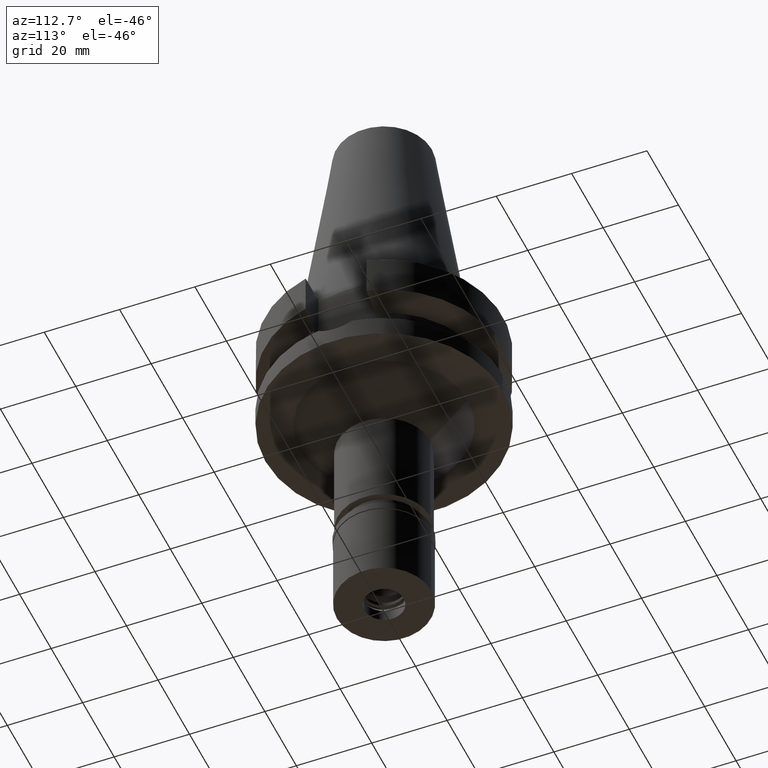
[diagram: clean part render]
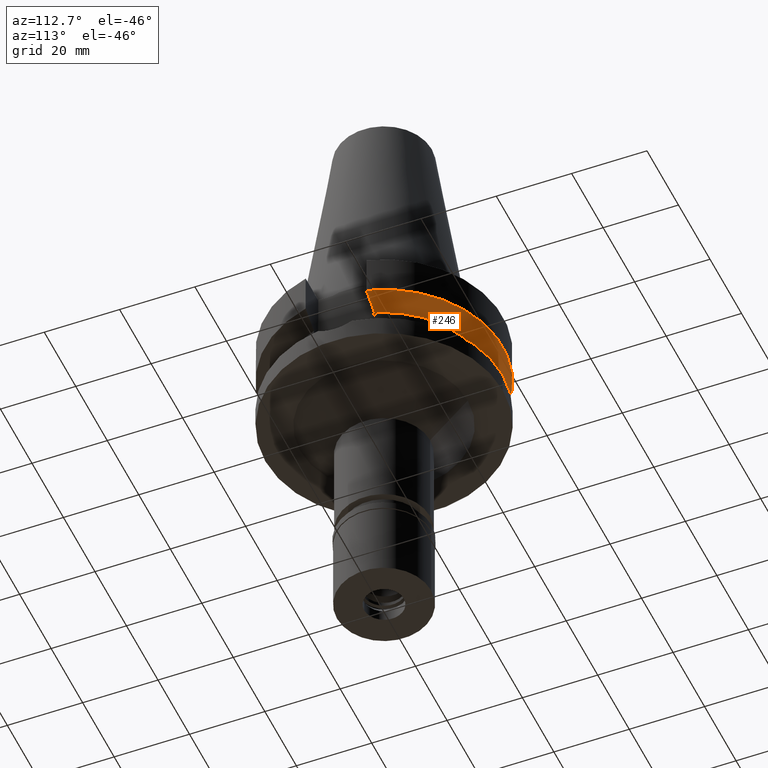
[diagram: same view with one face highlighted and labeled with its STEP entity id]
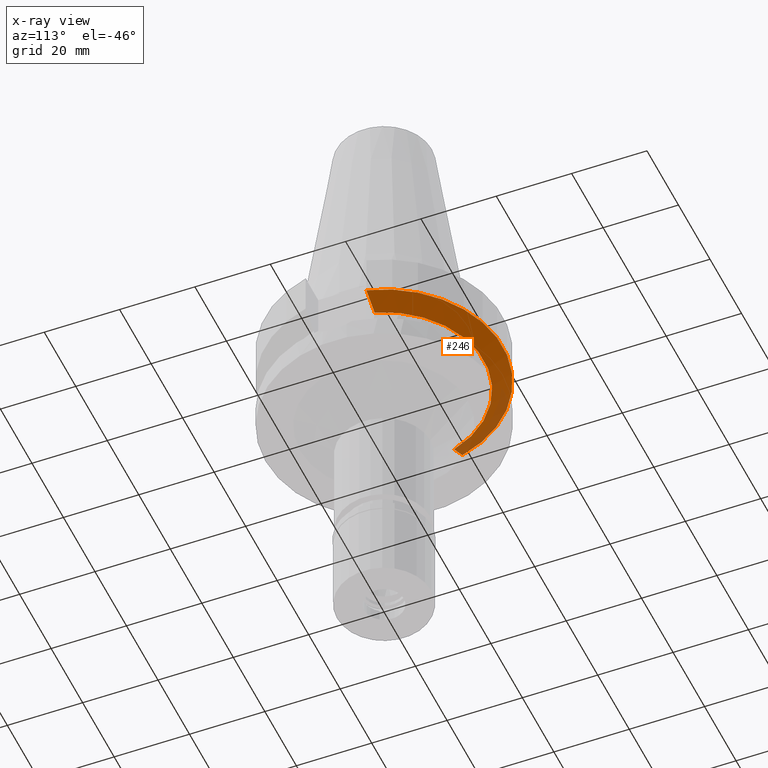
[diagram: x-ray of the same camera — body ghosted, the highlighted face saturated]
A machine part, auxiliary view. The second image highlights one B-rep face of the part: STEP entity #246.
The next image is the same camera in x-ray: the body ghosted, the highlighted face saturated — about 14% of this face is hidden behind the body in this view.
In plain terms, the highlighted conical surface has half-angle 60 deg.
Its self-contained STEP definition (entity closure, byte-faithful):
#75 = CARTESIAN_POINT ( 'NONE',  ( -26.83758139766586837, 8.050003169955372684, -13.57772740039767534 ) ) ;
#189 = VERTEX_POINT ( 'NONE', #716 ) ;
#226 = VERTEX_POINT ( 'NONE', #3113 ) ;
#241 = EDGE_CURVE ( 'NONE', #189, #566, #1414, .T. ) ;
#246 = ADVANCED_FACE ( 'NONE', ( #2449 ), #2520, .T. ) ;
#414 = ORIENTED_EDGE ( 'NONE', *, *, #241, .F. ) ;
#435 = DIRECTION ( 'NONE',  ( -0.9527442516822307583, 0.3037735849057093818, 0.0000000000000000000 ) ) ;
#479 = EDGE_LOOP ( 'NONE', ( #414, #1273, #1669, #1915 ) ) ;
#566 = VERTEX_POINT ( 'NONE', #2785 ) ;
#620 = CIRCLE ( 'NONE', #2230, 26.50000000000000711 ) ;
#646 = AXIS2_PLACEMENT_3D ( 'NONE', #1286, #1240, #1492 ) ;
#716 = CARTESIAN_POINT ( 'NONE',  ( 30.45402291411999940, 8.049999276161001305, -11.56551217212999916 ) ) ;
#780 = CARTESIAN_POINT ( 'NONE',  ( 28.57292324892950219, 8.049998553265025336, -12.61549607903367409 ) ) ;
#967 = EDGE_CURVE ( 'NONE', #189, #226, #1778, .T. ) ;
#983 = DIRECTION ( 'NONE',  ( 0.0000000000000000000, 1.000000000000000000, 0.0000000000000000000 ) ) ;
#1004 = CARTESIAN_POINT ( 'NONE',  ( 26.83754611702247317, 8.049990813108566456, -13.57774890615205088 ) ) ;
#1037 = CARTESIAN_POINT ( 'NONE',  ( -30.45402162675000213, 8.050004146431000152, -11.56546830337999943 ) ) ;
#1240 = DIRECTION ( 'NONE',  ( 0.0000000000000000000, 0.0000000000000000000, 1.000000000000000000 ) ) ;
#1273 = ORIENTED_EDGE ( 'NONE', *, *, #967, .T. ) ;
#1286 = CARTESIAN_POINT ( 'NONE',  ( 0.0000000000000000000, 0.0000000000000000000, -11.56550565266999975 ) ) ;
#1413 = EDGE_CURVE ( 'NONE', #1788, #566, #1651, .T. ) ;
#1414 = CIRCLE ( 'NONE', #646, 31.50000000000000000 ) ;
#1492 = DIRECTION ( 'NONE',  ( 0.0000000000000000000, 1.000000000000000000, 0.0000000000000000000 ) ) ;
#1532 = CARTESIAN_POINT ( 'NONE',  ( 25.24772413254000014, 8.049995411634998987, -14.45229205970999864 ) ) ;
#1566 = AXIS2_PLACEMENT_3D ( 'NONE', #1958, #1945, #983 ) ;
#1651 = B_SPLINE_CURVE_WITH_KNOTS ( 'NONE', 3,
 ( #2241, #75, #2066, #1037 ),
 .UNSPECIFIED., .F., .F.,
 ( 4, 4 ),
 ( 0.0000000000000000000, 1.000000000000000000 ),
 .UNSPECIFIED. ) ;
#1669 = ORIENTED_EDGE ( 'NONE', *, *, #2681, .F. ) ;
#1778 = B_SPLINE_CURVE_WITH_KNOTS ( 'NONE', 3,
 ( #2457, #780, #1004, #1532 ),
 .UNSPECIFIED., .F., .F.,
 ( 4, 4 ),
 ( 0.0000000000000000000, 1.000000000000000000 ),
 .UNSPECIFIED. ) ;
#1788 = VERTEX_POINT ( 'NONE', #2008 ) ;
#1840 = CARTESIAN_POINT ( 'NONE',  ( 0.0000000000000000000, 0.0000000000000000000, -14.45225699861000024 ) ) ;
#1915 = ORIENTED_EDGE ( 'NONE', *, *, #1413, .T. ) ;
#1945 = DIRECTION ( 'NONE',  ( 0.0000000000000000000, 0.0000000000000000000, 1.000000000000000000 ) ) ;
#1958 = CARTESIAN_POINT ( 'NONE',  ( 0.0000000000000000000, 0.0000000000000000000, -13.00888132564000088 ) ) ;
#2008 = CARTESIAN_POINT ( 'NONE',  ( -25.24772216476999986, 8.050001583268000971, -14.45224490104999937 ) ) ;
#2066 = CARTESIAN_POINT ( 'NONE',  ( -28.57295863350116960, 8.050008287822118191, -12.61547484743764969 ) ) ;
#2230 = AXIS2_PLACEMENT_3D ( 'NONE', #1840, #2357, #435 ) ;
#2241 = CARTESIAN_POINT ( 'NONE',  ( -25.24772216476999986, 8.050001583268000971, -14.45224490104999937 ) ) ;
#2357 = DIRECTION ( 'NONE',  ( 0.0000000000000000000, 0.0000000000000000000, -1.000000000000000000 ) ) ;
#2449 = FACE_OUTER_BOUND ( 'NONE', #479, .T. ) ;
#2457 = CARTESIAN_POINT ( 'NONE',  ( 30.45402291411999940, 8.049999276161001305, -11.56551217212999916 ) ) ;
#2520 = CONICAL_SURFACE ( 'NONE', #1566, 29.00000000000000000, 1.047197551196400456 ) ;
#2681 = EDGE_CURVE ( 'NONE', #1788, #226, #620, .T. ) ;
#2785 = CARTESIAN_POINT ( 'NONE',  ( -30.45402162675000213, 8.050004146431000152, -11.56546830337999943 ) ) ;
#3113 = CARTESIAN_POINT ( 'NONE',  ( 25.24772413254000014, 8.049995411634998987, -14.45229205970999864 ) ) ;